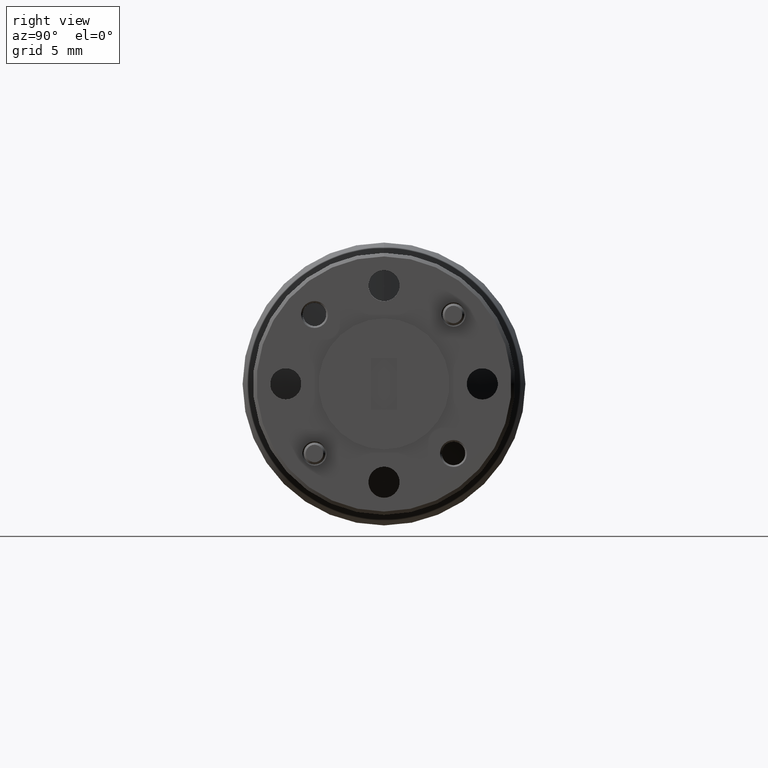
[diagram: clean part render]
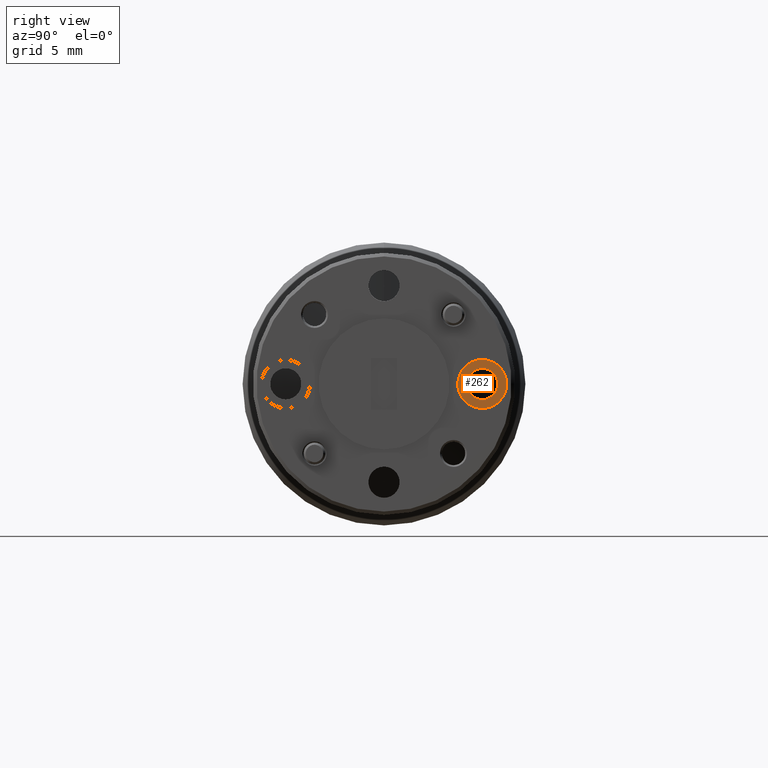
[diagram: same view with one face highlighted and labeled with its STEP entity id]
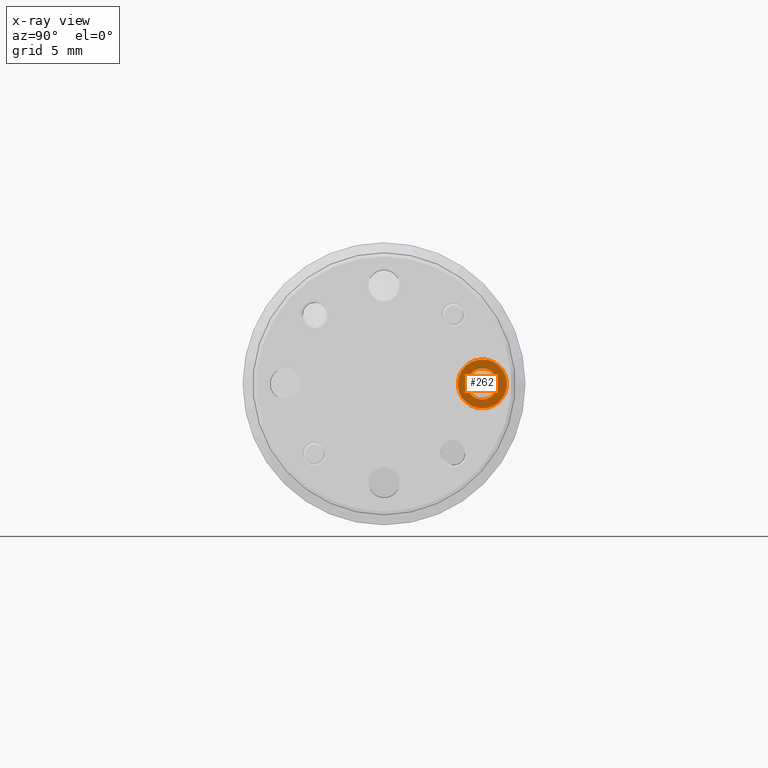
[diagram: x-ray of the same camera — body ghosted, the highlighted face saturated]
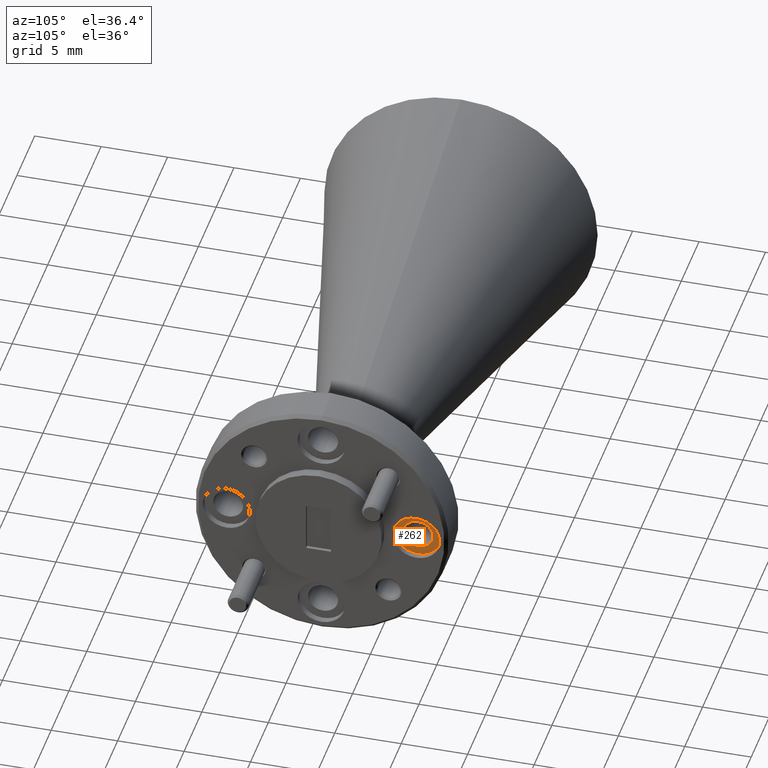
[diagram: same view with one face highlighted and labeled with its STEP entity id]
A machine part, right view. The second image highlights one B-rep face of the part: STEP entity #262.
The next image is the same camera in x-ray: the body ghosted, the highlighted face saturated — about 0% of this face is hidden behind the body in this view.
A second angle (auxiliary view) of the same face is appended — the face is thin or edge-on in the first view.
In plain terms, the highlighted planar face has unit normal (1, 0, 0).
Its self-contained STEP definition (entity closure, byte-faithful):
#61 = EDGE_CURVE ( 'NONE', #199, #1252, #1589, .T. ) ;
#65 = EDGE_CURVE ( 'NONE', #771, #568, #2081, .T. ) ;
#87 = CARTESIAN_POINT ( 'NONE',  ( 1.157337875290413300, 0.9223390014899649500, 0.9063998391645010600 ) ) ;
#91 = CARTESIAN_POINT ( 'NONE',  ( 1.157337875290413300, 0.9223390014899649500, 0.9508998391645008300 ) ) ;
#108 = AXIS2_PLACEMENT_3D ( 'NONE', #970, #1658, #1674 ) ;
#177 = ORIENTED_EDGE ( 'NONE', *, *, #2060, .T. ) ;
#199 = VERTEX_POINT ( 'NONE', #1829 ) ;
#262 = ADVANCED_FACE ( 'NONE', ( #668, #483 ), #912, .T. ) ;
#340 = CARTESIAN_POINT ( 'NONE',  ( 1.157337875290413300, 0.9223390014899649500, 0.9063998391645010600 ) ) ;
#352 = CARTESIAN_POINT ( 'NONE',  ( 1.157337875290413300, 0.9223390014899649500, 0.9763998391645010200 ) ) ;
#483 = FACE_BOUND ( 'NONE', #1765, .T. ) ;
#568 = VERTEX_POINT ( 'NONE', #91 ) ;
#668 = FACE_OUTER_BOUND ( 'NONE', #775, .T. ) ;
#725 = DIRECTION ( 'NONE',  ( 0.0000000000000000000, 0.0000000000000000000, -1.000000000000000000 ) ) ;
#771 = VERTEX_POINT ( 'NONE', #1138 ) ;
#775 = EDGE_LOOP ( 'NONE', ( #803, #1597 ) ) ;
#803 = ORIENTED_EDGE ( 'NONE', *, *, #61, .T. ) ;
#885 = AXIS2_PLACEMENT_3D ( 'NONE', #87, #1072, #1721 ) ;
#912 = PLANE ( 'NONE',  #1937 ) ;
#970 = CARTESIAN_POINT ( 'NONE',  ( 1.157337875290413300, 0.9223390014899649500, 0.9063998391645010600 ) ) ;
#1004 = AXIS2_PLACEMENT_3D ( 'NONE', #340, #2005, #1838 ) ;
#1072 = DIRECTION ( 'NONE',  ( 1.000000000000000000, 0.0000000000000000000, 0.0000000000000000000 ) ) ;
#1075 = DIRECTION ( 'NONE',  ( 0.0000000000000000000, 0.0000000000000000000, -1.000000000000000000 ) ) ;
#1138 = CARTESIAN_POINT ( 'NONE',  ( 1.157337875290413300, 0.9223390014899649500, 0.8618998391645013000 ) ) ;
#1187 = CIRCLE ( 'NONE', #885, 0.06999999999999993700 ) ;
#1252 = VERTEX_POINT ( 'NONE', #352 ) ;
#1560 = DIRECTION ( 'NONE',  ( -1.000000000000000000, -0.0000000000000000000, -0.0000000000000000000 ) ) ;
#1589 = CIRCLE ( 'NONE', #108, 0.06999999999999993700 ) ;
#1597 = ORIENTED_EDGE ( 'NONE', *, *, #1722, .T. ) ;
#1658 = DIRECTION ( 'NONE',  ( 1.000000000000000000, 0.0000000000000000000, 0.0000000000000000000 ) ) ;
#1674 = DIRECTION ( 'NONE',  ( 0.0000000000000000000, 0.0000000000000000000, -1.000000000000000000 ) ) ;
#1721 = DIRECTION ( 'NONE',  ( 0.0000000000000000000, 0.0000000000000000000, -1.000000000000000000 ) ) ;
#1722 = EDGE_CURVE ( 'NONE', #1252, #199, #1187, .T. ) ;
#1754 = CARTESIAN_POINT ( 'NONE',  ( 1.157337875290413300, 0.9223390014899649500, 0.9063998391645010600 ) ) ;
#1765 = EDGE_LOOP ( 'NONE', ( #1844, #177 ) ) ;
#1829 = CARTESIAN_POINT ( 'NONE',  ( 1.157337875290413300, 0.9223390014899649500, 0.8363998391645011100 ) ) ;
#1838 = DIRECTION ( 'NONE',  ( 0.0000000000000000000, 0.0000000000000000000, -1.000000000000000000 ) ) ;
#1844 = ORIENTED_EDGE ( 'NONE', *, *, #65, .T. ) ;
#1919 = CARTESIAN_POINT ( 'NONE',  ( 1.157337875290413300, 0.9223390014899649500, 0.9063998391645010600 ) ) ;
#1931 = CIRCLE ( 'NONE', #2056, 0.04449999999999975500 ) ;
#1937 = AXIS2_PLACEMENT_3D ( 'NONE', #1754, #2090, #725 ) ;
#2005 = DIRECTION ( 'NONE',  ( -1.000000000000000000, -0.0000000000000000000, -0.0000000000000000000 ) ) ;
#2056 = AXIS2_PLACEMENT_3D ( 'NONE', #1919, #1560, #1075 ) ;
#2060 = EDGE_CURVE ( 'NONE', #568, #771, #1931, .T. ) ;
#2081 = CIRCLE ( 'NONE', #1004, 0.04449999999999975500 ) ;
#2090 = DIRECTION ( 'NONE',  ( 1.000000000000000000, 0.0000000000000000000, 0.0000000000000000000 ) ) ;